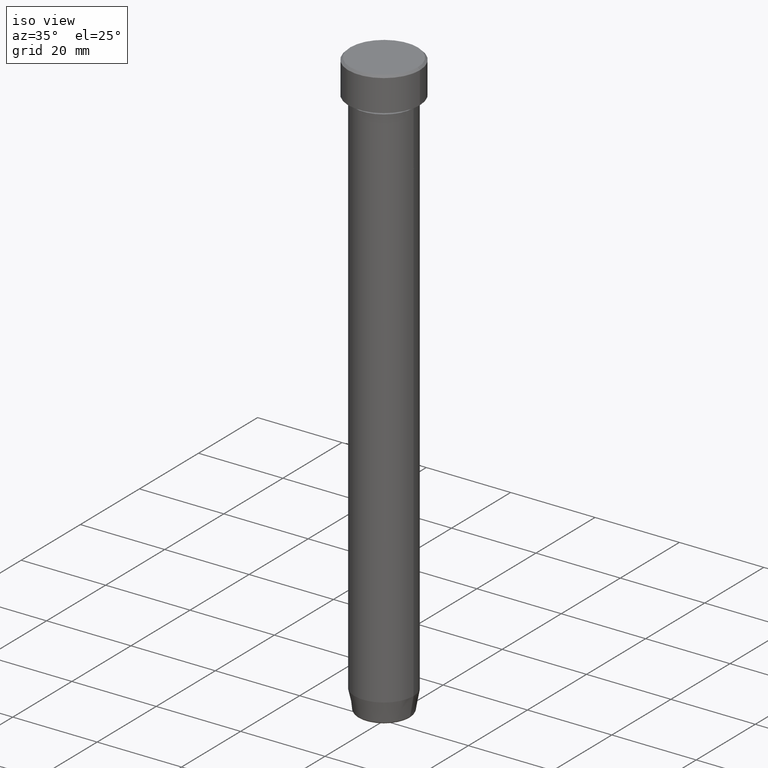
[diagram: clean part render]
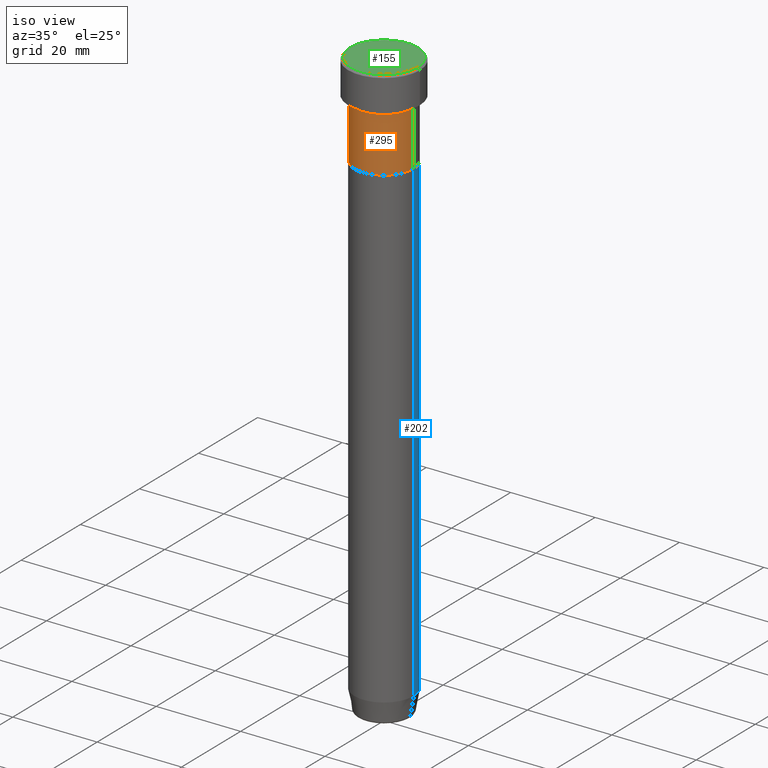
[diagram: same view with three faces highlighted in distinct colors, each labeled with its STEP entity id]
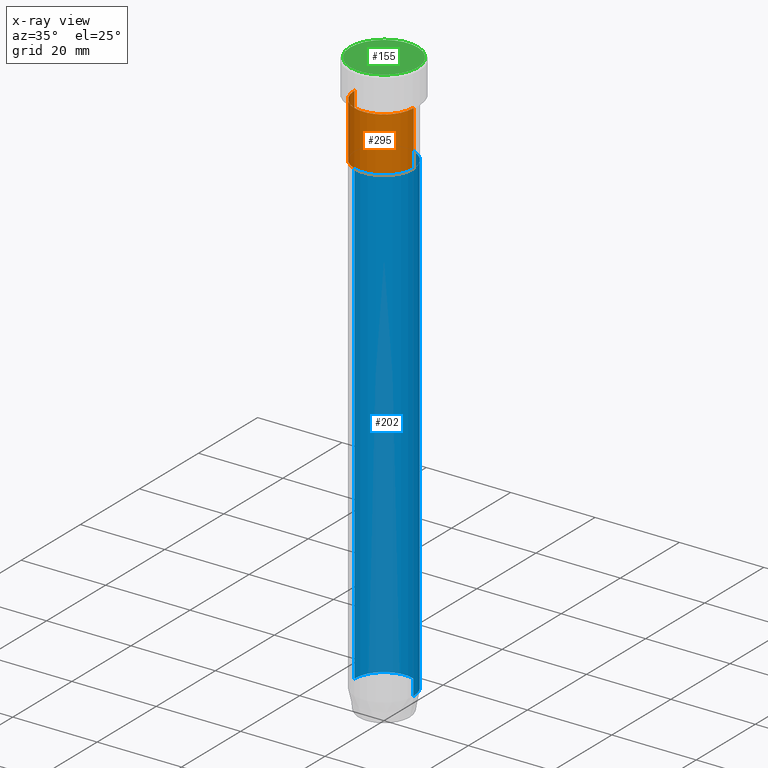
[diagram: x-ray of the same camera — body ghosted, the three highlighted faces saturated]
A machine part, iso view with three faces highlighted in distinct colors.
The next image is the same camera in x-ray (body ghosted, the three faces saturated) — at least one of them is partly hidden behind the body in this view.
Their STEP definitions:

[orange] entity #295 — the highlighted cylindrical surface (edge-blend (fillet) strip) has radius 7 mm, axis along (-0, -0, 1).
#14 = CARTESIAN_POINT ( 'NONE',  ( 7.000000000000000000, 0.000000000000000000, -9.000000000000001776 ) ) ;
#23 = AXIS2_PLACEMENT_3D ( 'NONE', #318, #78, #228 ) ;
#62 = LINE ( 'NONE', #539, #279 ) ;
#73 = EDGE_CURVE ( 'NONE', #568, #278, #93, .T. ) ;
#78 = DIRECTION ( 'NONE',  ( -0.000000000000000000, -0.000000000000000000, 1.000000000000000000 ) ) ;
#88 = DIRECTION ( 'NONE',  ( -0.000000000000000000, -0.000000000000000000, 1.000000000000000000 ) ) ;
#93 = CIRCLE ( 'NONE', #126, 6.999999999999999112 ) ;
#111 = CARTESIAN_POINT ( 'NONE',  ( -6.999999999999999112, 8.572527594031472204E-16, -22.00000000000000000 ) ) ;
#126 = AXIS2_PLACEMENT_3D ( 'NONE', #375, #384, #423 ) ;
#172 = CARTESIAN_POINT ( 'NONE',  ( -7.000000000000000888, 8.572527594031474176E-16, -9.000000000000001776 ) ) ;
#176 = EDGE_CURVE ( 'NONE', #278, #226, #511, .T. ) ;
#182 = DIRECTION ( 'NONE',  ( 1.000000000000000000, 0.000000000000000000, 0.000000000000000000 ) ) ;
#185 = CARTESIAN_POINT ( 'NONE',  ( 6.999999999999999112, 0.000000000000000000, 0.000000000000000000 ) ) ;
#191 = ORIENTED_EDGE ( 'NONE', *, *, #73, .T. ) ;
#226 = VERTEX_POINT ( 'NONE', #14 ) ;
#228 = DIRECTION ( 'NONE',  ( 1.000000000000000000, 0.000000000000000000, 0.000000000000000000 ) ) ;
#272 = EDGE_LOOP ( 'NONE', ( #548, #191, #344, #313 ) ) ;
#278 = VERTEX_POINT ( 'NONE', #401 ) ;
#279 = VECTOR ( 'NONE', #354, 1000.000000000000000 ) ;
#293 = EDGE_CURVE ( 'NONE', #568, #369, #62, .T. ) ;
#295 = ADVANCED_FACE ( 'NONE', ( #537 ), #434, .T. ) ;
#313 = ORIENTED_EDGE ( 'NONE', *, *, #442, .F. ) ;
#318 = CARTESIAN_POINT ( 'NONE',  ( 0.000000000000000000, 0.000000000000000000, 0.000000000000000000 ) ) ;
#322 = CIRCLE ( 'NONE', #415, 7.000000000000000000 ) ;
#344 = ORIENTED_EDGE ( 'NONE', *, *, #176, .T. ) ;
#352 = VECTOR ( 'NONE', #88, 1000.000000000000000 ) ;
#354 = DIRECTION ( 'NONE',  ( -0.000000000000000000, -0.000000000000000000, 1.000000000000000000 ) ) ;
#369 = VERTEX_POINT ( 'NONE', #172 ) ;
#375 = CARTESIAN_POINT ( 'NONE',  ( 0.000000000000000000, 0.000000000000000000, -22.00000000000000000 ) ) ;
#384 = DIRECTION ( 'NONE',  ( -0.000000000000000000, -0.000000000000000000, 1.000000000000000000 ) ) ;
#401 = CARTESIAN_POINT ( 'NONE',  ( 6.999999999999999112, 0.000000000000000000, -22.00000000000000000 ) ) ;
#415 = AXIS2_PLACEMENT_3D ( 'NONE', #556, #599, #182 ) ;
#423 = DIRECTION ( 'NONE',  ( 1.000000000000000000, 0.000000000000000000, 0.000000000000000000 ) ) ;
#434 = CYLINDRICAL_SURFACE ( 'NONE', #23, 6.999999999999999112 ) ;
#442 = EDGE_CURVE ( 'NONE', #369, #226, #322, .T. ) ;
#511 = LINE ( 'NONE', #185, #352 ) ;
#537 = FACE_OUTER_BOUND ( 'NONE', #272, .T. ) ;
#539 = CARTESIAN_POINT ( 'NONE',  ( -6.999999999999999112, 8.572527594031472204E-16, 0.000000000000000000 ) ) ;
#548 = ORIENTED_EDGE ( 'NONE', *, *, #293, .F. ) ;
#556 = CARTESIAN_POINT ( 'NONE',  ( 0.000000000000000000, 0.000000000000000000, -9.000000000000001776 ) ) ;
#568 = VERTEX_POINT ( 'NONE', #111 ) ;
#599 = DIRECTION ( 'NONE',  ( -0.000000000000000000, -0.000000000000000000, 1.000000000000000000 ) ) ;

[blue] entity #202 — the highlighted cylindrical surface (edge-blend (fillet) strip) has radius 7 mm, axis along (-0, -0, 1).
#17 = VERTEX_POINT ( 'NONE', #201 ) ;
#51 = CARTESIAN_POINT ( 'NONE',  ( -6.999999999999999112, 8.572527594031472204E-16, -22.00000000000000000 ) ) ;
#71 = CIRCLE ( 'NONE', #414, 6.999999999999999112 ) ;
#104 = CARTESIAN_POINT ( 'NONE',  ( 6.999999999999999112, 0.000000000000000000, -22.00000000000000000 ) ) ;
#105 = DIRECTION ( 'NONE',  ( -0.000000000000000000, -0.000000000000000000, 1.000000000000000000 ) ) ;
#112 = CARTESIAN_POINT ( 'NONE',  ( 0.000000000000000000, 0.000000000000000000, -134.9999999999999716 ) ) ;
#119 = EDGE_CURVE ( 'NONE', #274, #133, #195, .T. ) ;
#120 = EDGE_LOOP ( 'NONE', ( #150, #438, #505, #560 ) ) ;
#133 = VERTEX_POINT ( 'NONE', #51 ) ;
#150 = ORIENTED_EDGE ( 'NONE', *, *, #205, .T. ) ;
#169 = CARTESIAN_POINT ( 'NONE',  ( 6.999999999999999112, 0.000000000000000000, 0.000000000000000000 ) ) ;
#192 = DIRECTION ( 'NONE',  ( -0.000000000000000000, -0.000000000000000000, 1.000000000000000000 ) ) ;
#195 = LINE ( 'NONE', #241, #469 ) ;
#201 = CARTESIAN_POINT ( 'NONE',  ( 6.999999999999999112, 0.000000000000000000, -134.9999999999999716 ) ) ;
#202 = ADVANCED_FACE ( 'NONE', ( #300 ), #294, .T. ) ;
#205 = EDGE_CURVE ( 'NONE', #17, #274, #570, .T. ) ;
#206 = DIRECTION ( 'NONE',  ( 1.000000000000000000, 0.000000000000000000, 0.000000000000000000 ) ) ;
#214 = EDGE_CURVE ( 'NONE', #563, #133, #71, .T. ) ;
#241 = CARTESIAN_POINT ( 'NONE',  ( -6.999999999999999112, 8.572527594031472204E-16, 0.000000000000000000 ) ) ;
#253 = DIRECTION ( 'NONE',  ( 1.000000000000000000, 0.000000000000000000, 0.000000000000000000 ) ) ;
#274 = VERTEX_POINT ( 'NONE', #426 ) ;
#294 = CYLINDRICAL_SURFACE ( 'NONE', #597, 6.999999999999999112 ) ;
#300 = FACE_OUTER_BOUND ( 'NONE', #120, .T. ) ;
#303 = DIRECTION ( 'NONE',  ( -0.000000000000000000, -0.000000000000000000, 1.000000000000000000 ) ) ;
#305 = CARTESIAN_POINT ( 'NONE',  ( 0.000000000000000000, 0.000000000000000000, 0.000000000000000000 ) ) ;
#315 = DIRECTION ( 'NONE',  ( -0.000000000000000000, -0.000000000000000000, 1.000000000000000000 ) ) ;
#333 = EDGE_CURVE ( 'NONE', #17, #563, #506, .T. ) ;
#341 = AXIS2_PLACEMENT_3D ( 'NONE', #112, #303, #583 ) ;
#414 = AXIS2_PLACEMENT_3D ( 'NONE', #429, #105, #206 ) ;
#426 = CARTESIAN_POINT ( 'NONE',  ( -6.999999999999999112, 8.572527594031472204E-16, -134.9999999999999716 ) ) ;
#429 = CARTESIAN_POINT ( 'NONE',  ( 0.000000000000000000, 0.000000000000000000, -22.00000000000000000 ) ) ;
#438 = ORIENTED_EDGE ( 'NONE', *, *, #119, .T. ) ;
#469 = VECTOR ( 'NONE', #192, 1000.000000000000000 ) ;
#485 = DIRECTION ( 'NONE',  ( -0.000000000000000000, -0.000000000000000000, 1.000000000000000000 ) ) ;
#503 = VECTOR ( 'NONE', #315, 1000.000000000000000 ) ;
#505 = ORIENTED_EDGE ( 'NONE', *, *, #214, .F. ) ;
#506 = LINE ( 'NONE', #169, #503 ) ;
#560 = ORIENTED_EDGE ( 'NONE', *, *, #333, .F. ) ;
#563 = VERTEX_POINT ( 'NONE', #104 ) ;
#570 = CIRCLE ( 'NONE', #341, 6.999999999999999112 ) ;
#583 = DIRECTION ( 'NONE',  ( 1.000000000000000000, 0.000000000000000000, 0.000000000000000000 ) ) ;
#597 = AXIS2_PLACEMENT_3D ( 'NONE', #305, #485, #253 ) ;

[green] entity #155 — the highlighted planar face has unit normal (0, -0, 1).
#54 = EDGE_CURVE ( 'NONE', #310, #264, #170, .T. ) ;
#57 = DIRECTION ( 'NONE',  ( -0.000000000000000000, -0.000000000000000000, 1.000000000000000000 ) ) ;
#97 = EDGE_LOOP ( 'NONE', ( #196, #480 ) ) ;
#143 = CIRCLE ( 'NONE', #420, 8.000000000000000000 ) ;
#155 = ADVANCED_FACE ( 'NONE', ( #328 ), #468, .T. ) ;
#170 = CIRCLE ( 'NONE', #371, 8.000000000000000000 ) ;
#174 = CARTESIAN_POINT ( 'NONE',  ( -8.000000000000000000, 0.000000000000000000, 0.000000000000000000 ) ) ;
#180 = AXIS2_PLACEMENT_3D ( 'NONE', #289, #246, #283 ) ;
#196 = ORIENTED_EDGE ( 'NONE', *, *, #54, .T. ) ;
#209 = CARTESIAN_POINT ( 'NONE',  ( 8.000000000000000000, 1.010333609296566550E-15, 0.000000000000000000 ) ) ;
#245 = DIRECTION ( 'NONE',  ( -0.000000000000000000, -0.000000000000000000, 1.000000000000000000 ) ) ;
#246 = DIRECTION ( 'NONE',  ( 0.000000000000000000, -0.000000000000000000, 1.000000000000000000 ) ) ;
#251 = CARTESIAN_POINT ( 'NONE',  ( 0.000000000000000000, 0.000000000000000000, 0.000000000000000000 ) ) ;
#255 = EDGE_CURVE ( 'NONE', #264, #310, #143, .T. ) ;
#264 = VERTEX_POINT ( 'NONE', #209 ) ;
#283 = DIRECTION ( 'NONE',  ( 1.000000000000000000, 0.000000000000000000, 0.000000000000000000 ) ) ;
#289 = CARTESIAN_POINT ( 'NONE',  ( 0.000000000000000000, 0.000000000000000000, 0.000000000000000000 ) ) ;
#310 = VERTEX_POINT ( 'NONE', #174 ) ;
#328 = FACE_OUTER_BOUND ( 'NONE', #97, .T. ) ;
#371 = AXIS2_PLACEMENT_3D ( 'NONE', #569, #245, #386 ) ;
#386 = DIRECTION ( 'NONE',  ( 1.000000000000000000, 0.000000000000000000, 0.000000000000000000 ) ) ;
#396 = DIRECTION ( 'NONE',  ( 1.000000000000000000, 0.000000000000000000, 0.000000000000000000 ) ) ;
#420 = AXIS2_PLACEMENT_3D ( 'NONE', #251, #57, #396 ) ;
#468 = PLANE ( 'NONE',  #180 ) ;
#480 = ORIENTED_EDGE ( 'NONE', *, *, #255, .T. ) ;
#569 = CARTESIAN_POINT ( 'NONE',  ( 0.000000000000000000, 0.000000000000000000, 0.000000000000000000 ) ) ;